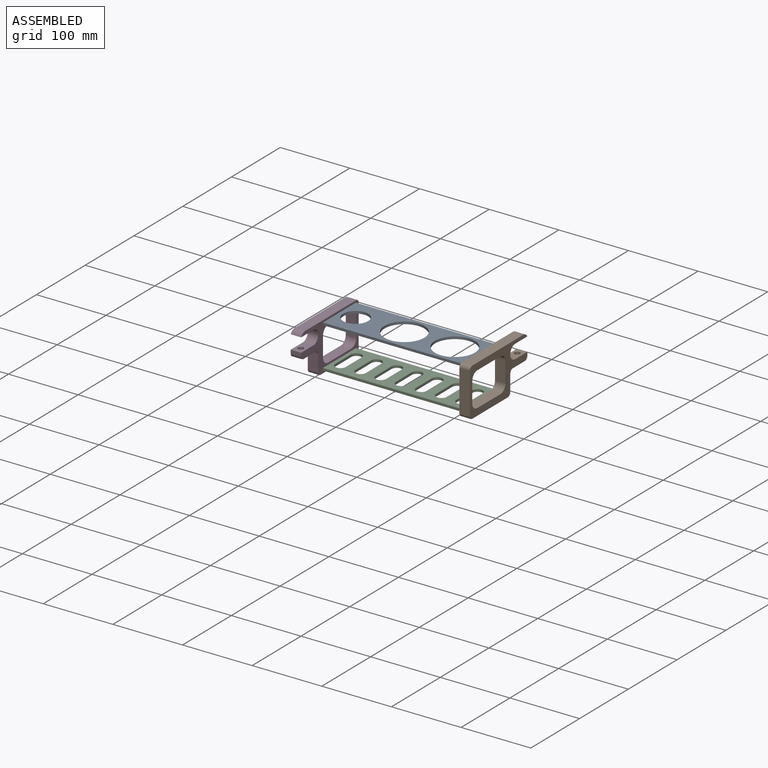
[diagram: assembled view]
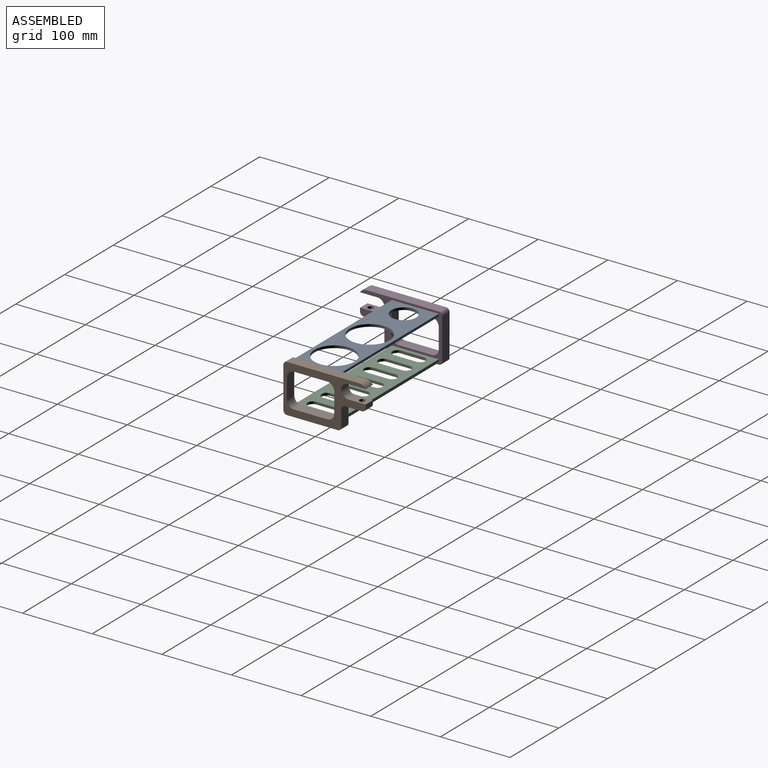
[diagram: assembled view, second angle]
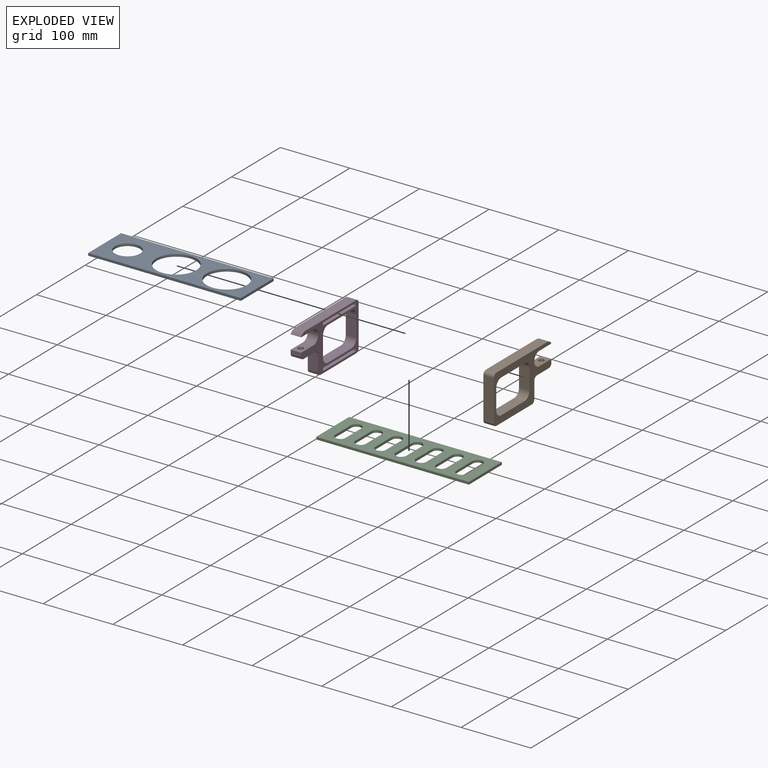
[diagram: exploded view]
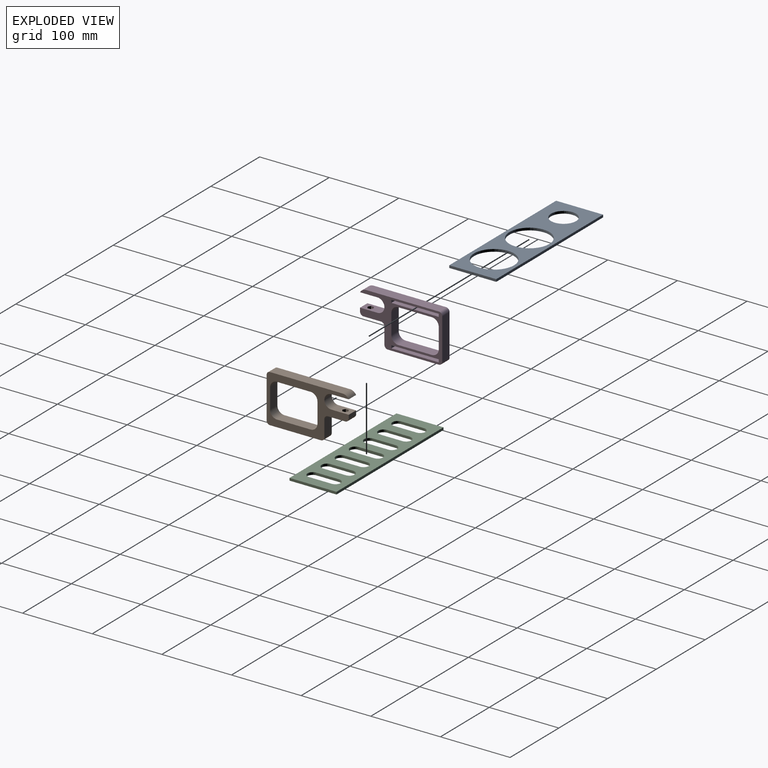
[diagram: exploded view, second angle]
ASSEMBLY  parts=4 mates=3
PART A: 9 faces, bbox 219.3x67.5x3.5 mm
  f0: plane 67.5x3.5mm, normal (1,0,0), area 236.3mm2, adj f1,f5,f7,f8
  f1: plane 219.25x3.5mm, normal (0,1,0), area 767.4mm2, adj f0,f2,f7,f8
  f2: plane 67.5x3.5mm, normal (-1,0,0), area 236.3mm2, adj f1,f5,f7,f8
  f3: cylinder r=28.75mm len=57.5mm, axis (0,0,-1), area 632.2mm2, adj f7,f8
  f4: cylinder r=28.75mm len=57.5mm, axis (0,0,-1), area 632.2mm2, adj f7,f8
  f5: plane 219.25x3.5mm, normal (0,-1,0), area 767.4mm2, adj f0,f2,f7,f8
  f6: cylinder r=18mm len=36mm, axis (0,0,-1), area 395.8mm2, adj f7,f8
  f7: plane 219.25x67.5mm, normal (0,0,1), area 8588.1mm2, adj f0,f1,f2,f3,f4,f5,f6
  f8: plane 219.25x67.5mm, normal (0,0,-1), area 8588.1mm2, adj f0,f1,f2,f3,f4,f5,f6
PART B: 43 faces, bbox 15x118x69 mm
  f0: plane 25x15mm, normal (0,0,1), area 326.3mm2, adj f4,f20,f21,f22,f27,f28,f29,f30
  f1: plane 59x15mm, normal (0,1,0), area 885mm2, adj f20,f21,f35,f36
  f2: plane 104.22x15mm, normal (0,0,1), area 1563.3mm2, adj f20,f21,f23,f36
  f3: plane 25x15mm, normal (0,0,-1), area 375mm2, adj f20,f21,f22,f23
  f4: plane 15x5mm, normal (0,-1,0), area 75mm2, adj f0,f20,f21,f25
  f5: plane 25x15mm, normal (0,0,-1), area 359.1mm2, adj f20,f21,f24,f25,f26
  f6: plane 23.79x15mm, normal (0,-1,0), area 356.8mm2, adj f20,f21,f24,f34
  f7: plane 68x10mm, normal (0,0,1), area 680mm2, adj f8,f16,f20,f42
  f8: plane 10x4mm, normal (0,1,0), area 40mm2, adj f7,f9,f20,f42
  f9: plane 68x10mm, normal (0,0,-1), area 680mm2, adj f8,f16,f20,f42
  f10: plane 10x4mm, normal (0,1,0), area 40mm2, adj f11,f17,f20,f41
  f11: plane 68x10mm, normal (0,0,-1), area 680mm2, adj f10,f12,f20,f41
  f12: plane 10x4mm, normal (0,-1,0), area 40mm2, adj f11,f17,f20,f41
  f13: plane 29x15mm, normal (0,1,0), area 435mm2, adj f20,f21,f37,f38
  f14: plane 48x15mm, normal (0,0,-1), area 720mm2, adj f20,f21,f38,f40
  f15: plane 29x15mm, normal (0,-1,0), area 435mm2, adj f20,f21,f39,f40
  f16: plane 10x4mm, normal (0,-1,0), area 40mm2, adj f7,f9,f20,f42
  f17: plane 68x10mm, normal (0,0,1), area 680mm2, adj f10,f12,f20,f41
  f18: plane 48x15mm, normal (0,0,1), area 720mm2, adj f20,f21,f37,f39
  f19: plane 73x15mm, normal (0,0,-1), area 1095mm2, adj f20,f21,f34,f35
  f20: plane 118x69mm, normal (1,0,0), area 2482.9mm2, adj f0,f1,f2,f3,f4,f5,f6,f7
  f21: plane 118x69mm, normal (-1,0,0), area 3026.9mm2, adj f0,f1,f2,f3,f4,f5,f6,f13
  f22: cylinder r=10mm len=20mm, axis (-1,0,0), area 471.2mm2, adj f0,f3,f20,f21
  f23: cylinder r=10mm len=15mm, axis (-1,0,0), area 160.7mm2, adj f2,f3,f20,f21
  f24: cylinder r=5mm len=15mm, axis (-1,0,0), area 117.8mm2, adj f5,f6,f20,f21
  f25: cylinder r=5mm len=15mm, axis (-1,0,0), area 117.8mm2, adj f4,f5,f20,f21
  f26: cylinder r=2.25mm len=6mm, axis (0,0,1), area 84.8mm2, adj f5,f33
  f27: plane 4.33x4mm, normal (-1,0,0), area 17.3mm2, adj f0,f28,f32,f33
  f28: plane 4x3.74mm, normal (-0.5,-0.86,0), area 17.3mm2, adj f0,f27,f29,f33
  f29: plane 4x3.76mm, normal (0.5,-0.87,0), area 17.3mm2, adj f0,f28,f30,f33
  f30: plane 4.33x4mm, normal (1,0,0), area 17.3mm2, adj f0,f29,f31,f33
  f31: plane 4x3.74mm, normal (0.5,0.86,0), area 17.3mm2, adj f0,f30,f32,f33
  f32: plane 4x3.76mm, normal (-0.5,0.87,0), area 17.3mm2, adj f0,f27,f31,f33
  f33: plane 8.66x7.52mm, normal (0,0,1), area 32.8mm2, adj f26,f27,f28,f29,f30,f31,f32
  f34: cylinder r=5mm len=15mm, axis (-1,0,0), area 117.8mm2, adj f6,f19,f20,f21
  f35: cylinder r=5mm len=15mm, axis (1,0,0), area 117.8mm2, adj f1,f19,f20,f21
  f36: cylinder r=5mm len=15mm, axis (1,0,0), area 117.8mm2, adj f1,f2,f20,f21
  f37: cylinder r=10mm len=15mm, axis (1,0,0), area 235.6mm2, adj f13,f18,f20,f21
  f38: cylinder r=10mm len=15mm, axis (-1,0,0), area 235.6mm2, adj f13,f14,f20,f21
  f39: cylinder r=10mm len=15mm, axis (-1,0,0), area 235.6mm2, adj f15,f18,f20,f21
  f40: cylinder r=10mm len=15mm, axis (1,0,0), area 235.6mm2, adj f14,f15,f20,f21
  f41: plane 68x4mm, normal (1,0,0), area 272mm2, adj f10,f11,f12,f17
  f42: plane 68x4mm, normal (1,0,0), area 272mm2, adj f7,f8,f9,f16
PART C: 34 faces, bbox 219.3x67.5x3.5 mm
  f0: plane 32.5x3.5mm, normal (-1,0,0), area 113.8mm2, adj f18,f19,f32,f33
  f1: plane 32.5x3.5mm, normal (1,0,0), area 113.8mm2, adj f18,f19,f32,f33
  f2: plane 32.5x3.5mm, normal (-1,0,0), area 113.8mm2, adj f18,f19,f30,f31
  f3: plane 32.5x3.5mm, normal (1,0,0), area 113.8mm2, adj f18,f19,f30,f31
  f4: plane 32.5x3.5mm, normal (-1,0,0), area 113.8mm2, adj f18,f19,f28,f29
  f5: plane 32.5x3.5mm, normal (1,0,0), area 113.8mm2, adj f18,f19,f28,f29
  f6: plane 32.5x3.5mm, normal (-1,0,0), area 113.8mm2, adj f18,f19,f26,f27
  f7: plane 32.5x3.5mm, normal (1,0,0), area 113.8mm2, adj f18,f19,f26,f27
  f8: plane 32.5x3.5mm, normal (-1,0,0), area 113.8mm2, adj f18,f19,f24,f25
  f9: plane 32.5x3.5mm, normal (1,0,0), area 113.8mm2, adj f18,f19,f24,f25
  f10: plane 32.5x3.5mm, normal (-1,0,0), area 113.8mm2, adj f18,f19,f22,f23
  f11: plane 32.5x3.5mm, normal (1,0,0), area 113.8mm2, adj f18,f19,f22,f23
  f12: plane 219.25x3.5mm, normal (0,-1,0), area 767.4mm2, adj f13,f16,f18,f19
  f13: plane 67.5x3.5mm, normal (1,0,0), area 236.3mm2, adj f12,f14,f18,f19
  f14: plane 219.25x3.5mm, normal (0,1,0), area 767.4mm2, adj f13,f16,f18,f19
  f15: plane 32.5x3.5mm, normal (-1,0,0), area 113.8mm2, adj f18,f19,f20,f21
  f16: plane 67.5x3.5mm, normal (-1,0,0), area 236.3mm2, adj f12,f14,f18,f19
  f17: plane 32.5x3.5mm, normal (1,0,0), area 113.8mm2, adj f18,f19,f20,f21
  f18: plane 219.25x67.5mm, normal (0,0,1), area 10149.9mm2, adj f0,f1,f2,f3,f4,f5,f6,f7
  f19: plane 219.25x67.5mm, normal (0,0,-1), area 10149.9mm2, adj f0,f1,f2,f3,f4,f5,f6,f7
  f20: cylinder r=7.5mm len=15mm, axis (0,0,-1), area 82.5mm2, adj f15,f17,f18,f19
  f21: cylinder r=7.5mm len=15mm, axis (0,0,1), area 82.5mm2, adj f15,f17,f18,f19
  f22: cylinder r=7.5mm len=15mm, axis (0,0,1), area 82.5mm2, adj f10,f11,f18,f19
  f23: cylinder r=7.5mm len=15mm, axis (0,0,1), area 82.5mm2, adj f10,f11,f18,f19
  f24: cylinder r=7.5mm len=15mm, axis (0,0,1), area 82.5mm2, adj f8,f9,f18,f19
  f25: cylinder r=7.5mm len=15mm, axis (0,0,1), area 82.5mm2, adj f8,f9,f18,f19
  f26: cylinder r=7.5mm len=15mm, axis (0,0,1), area 82.5mm2, adj f6,f7,f18,f19
  f27: cylinder r=7.5mm len=15mm, axis (0,0,1), area 82.5mm2, adj f6,f7,f18,f19
  f28: cylinder r=7.5mm len=15mm, axis (0,0,1), area 82.5mm2, adj f4,f5,f18,f19
  f29: cylinder r=7.5mm len=15mm, axis (0,0,1), area 82.5mm2, adj f4,f5,f18,f19
  f30: cylinder r=7.5mm len=15mm, axis (0,0,1), area 82.5mm2, adj f2,f3,f18,f19
  f31: cylinder r=7.5mm len=15mm, axis (0,0,1), area 82.5mm2, adj f2,f3,f18,f19
  f32: cylinder r=7.5mm len=15mm, axis (0,0,1), area 82.5mm2, adj f0,f1,f18,f19
  f33: cylinder r=7.5mm len=15mm, axis (0,0,1), area 82.5mm2, adj f0,f1,f18,f19
PART D: same geometry as B
PLACE A rot(axis=(-0.64,-0.15,0.76),0deg) t=(145.39,84.75,33.44)mm
PLACE B rot(axis=(0,0,-1),180deg) t=(230.39,118.75,8.23)mm
PLACE C rot(axis=(-0.64,-0.15,0.76),0deg) t=(86.14,84.75,-25.56)mm
PLACE D rot(axis=(-0.64,-0.15,0.76),0deg) t=(1.14,50.75,9.98)mm
MATE fastened D.f41 <-> A.f2  axis (1,0,0) through (6.14,84.75,35.19)mm
MATE fastened A.f0 <-> B.f41  axis (1,0,0) through (225.39,84.75,33.44)mm
MATE fastened C.f16 <-> D.f42  axis (-1,0,0) through (6.14,84.75,-23.81)mm
